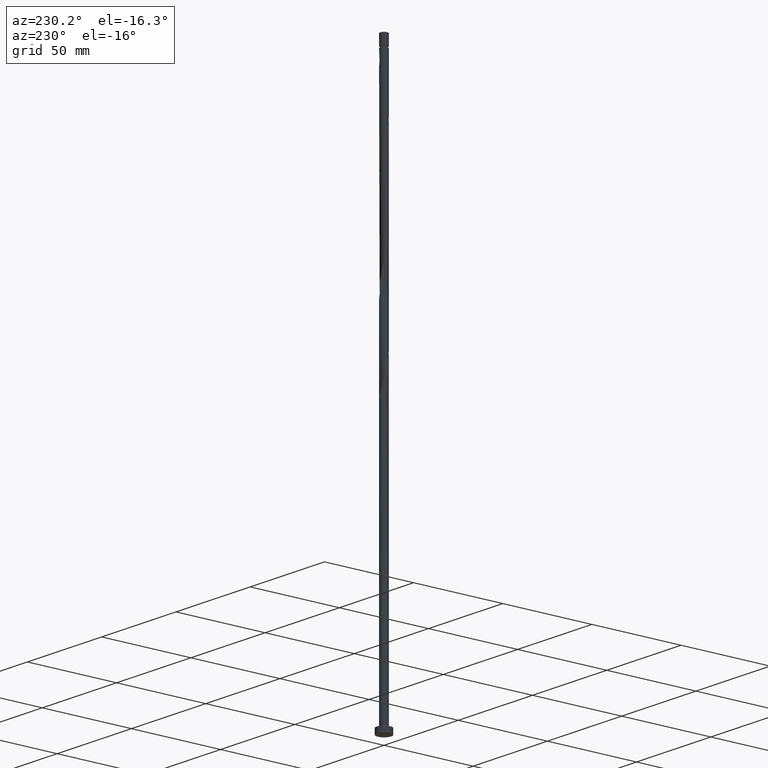
[diagram: clean part render]
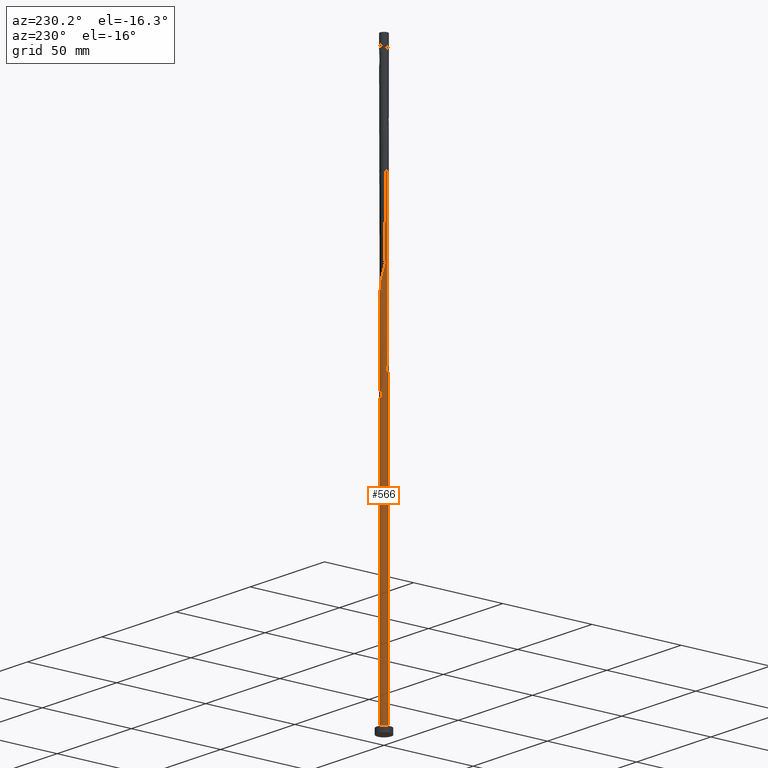
[diagram: same view with one face highlighted and labeled with its STEP entity id]
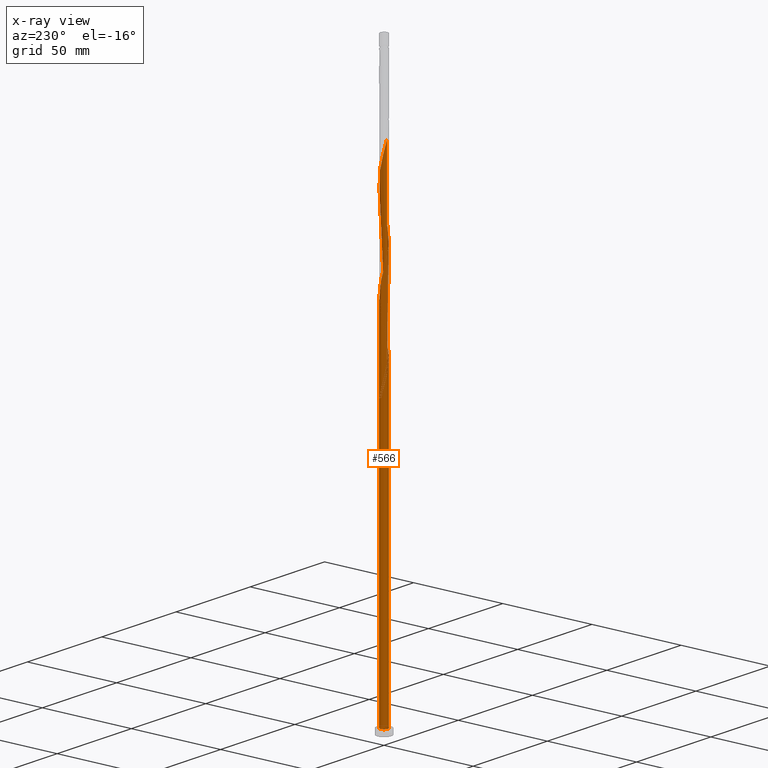
[diagram: x-ray of the same camera — body ghosted, the highlighted face saturated]
A machine part, auxiliary view. The second image highlights one B-rep face of the part: STEP entity #566.
The next image is the same camera in x-ray: the body ghosted, the highlighted face saturated — about 0% of this face is hidden behind the body in this view.
In plain terms, the highlighted cylindrical surface (bore or boss wall) has radius 2.1 mm, axis along (-0, -0, -1).
Its self-contained STEP definition (entity closure, byte-faithful):
#12 = CARTESIAN_POINT ( 'NONE',  ( -1.977324802898940526, 0.7457696815047984984, 211.7246174760195174 ) ) ;
#22 = CARTESIAN_POINT ( 'NONE',  ( 1.529844344593006999, 1.457930751211418796, 194.8496174760195174 ) ) ;
#33 = CARTESIAN_POINT ( 'NONE',  ( 1.609865263481134123, -1.348456092513521831, 235.1621174760196027 ) ) ;
#34 = CARTESIAN_POINT ( 'NONE',  ( -2.010914572924958676, 0.6497756338992118907, 162.9746174760196027 ) ) ;
#42 = CARTESIAN_POINT ( 'NONE',  ( 0.5164225990933596355, 2.035511655369645734, 199.5371174760196311 ) ) ;
#43 = CARTESIAN_POINT ( 'NONE',  ( -2.100000000000000533, 2.772462431623409920E-15, 165.5866345539256770 ) ) ;
#50 = CARTESIAN_POINT ( 'NONE',  ( 0.7457696815047989425, 1.977324802898940526, 198.5996174760195743 ) ) ;
#60 = CARTESIAN_POINT ( 'NONE',  ( 1.815908065240426694, 1.080954991017605060, 245.4746174760195458 ) ) ;
#124 = CARTESIAN_POINT ( 'NONE',  ( -1.977324802898940526, 0.7457696815047984984, 159.2246174760195458 ) ) ;
#127 = AXIS2_PLACEMENT_3D ( 'NONE', #1487, #674, #1628 ) ;
#146 = CARTESIAN_POINT ( 'NONE',  ( -1.913411319082694462, -0.8653653124584091971, 165.7871174760196027 ) ) ;
#153 = CARTESIAN_POINT ( 'NONE',  ( -0.8653653124584091971, 1.913411319082694462, 152.6621174760196311 ) ) ;
#165 = CARTESIAN_POINT ( 'NONE',  ( -1.167067840434034220, -1.761799775750848784, 170.4746174760195174 ) ) ;
#166 = CARTESIAN_POINT ( 'NONE',  ( -2.057999999999999829, 0.4178947235847834119, 163.9121174760195743 ) ) ;
#176 = CARTESIAN_POINT ( 'NONE',  ( -0.9564187609694169145, -1.869562289324894433, 223.9121174760196311 ) ) ;
#184 = CARTESIAN_POINT ( 'NONE',  ( 0.9564187609694170256, 1.869562289324894433, 197.6621174760195458 ) ) ;
#185 = DIRECTION ( 'NONE',  ( 1.000000000000000000, 0.000000000000000000, 0.000000000000000000 ) ) ;
#192 = CARTESIAN_POINT ( 'NONE',  ( -0.8653653124584091971, 1.913411319082694462, 257.6621174760196595 ) ) ;
#195 = CARTESIAN_POINT ( 'NONE',  ( -1.672876204916717180, -1.269442871114512927, 220.1621174760196027 ) ) ;
#202 = CARTESIAN_POINT ( 'NONE',  ( -1.815908065240426694, -1.080954991017605282, 219.2246174760195458 ) ) ;
#203 = CARTESIAN_POINT ( 'NONE',  ( -1.815908065240424252, 1.080954991017604616, 161.0996174760196027 ) ) ;
#211 = CARTESIAN_POINT ( 'NONE',  ( 2.035511655369645734, -0.5164225990933594135, 186.4121174760196027 ) ) ;
#219 = CARTESIAN_POINT ( 'NONE',  ( 0.7457696815047989425, 1.977324802898940526, 251.0996174760194890 ) ) ;
#245 = CARTESIAN_POINT ( 'NONE',  ( 0.000000000000000000, 0.000000000000000000, 3.000000000000000000 ) ) ;
#249 = EDGE_CURVE ( 'NONE', #824, #1126, #1617, .T. ) ;
#253 = FACE_OUTER_BOUND ( 'NONE', #285, .T. ) ;
#261 = CYLINDRICAL_SURFACE ( 'NONE', #1806, 2.100000000000000089 ) ;
#264 = CARTESIAN_POINT ( 'NONE',  ( 0.1860138132703544611, -2.105085427075044535, 176.0996174760195743 ) ) ;
#268 = VERTEX_POINT ( 'NONE', #1403 ) ;
#272 = CARTESIAN_POINT ( 'NONE',  ( -2.100000000000004086, 0.02526908404941905634, 162.1372377098884385 ) ) ;
#285 = EDGE_LOOP ( 'NONE', ( #405, #1778, #555, #1409, #1258, #781, #1386, #692, #959 ) ) ;
#295 = CARTESIAN_POINT ( 'NONE',  ( -1.529844344593006999, -1.457930751211419462, 168.5996174760195458 ) ) ;
#296 = CARTESIAN_POINT ( 'NONE',  ( 0.000000000000000000, 0.000000000000000000, 3.000000000000000000 ) ) ;
#304 = VERTEX_POINT ( 'NONE', #1428 ) ;
#306 = CARTESIAN_POINT ( 'NONE',  ( -1.167067840434034220, -1.761799775750848784, 222.9746174760195174 ) ) ;
#315 = CARTESIAN_POINT ( 'NONE',  ( 1.977324802898940526, -0.7457696815047987204, 185.4746174760195458 ) ) ;
#324 = CARTESIAN_POINT ( 'NONE',  ( -2.099391967457698627, 0.05053085170578241331, 214.5371174760196027 ) ) ;
#330 = CARTESIAN_POINT ( 'NONE',  ( -1.977324802898940526, 0.7457696815047984984, 264.2246174760194890 ) ) ;
#332 = CARTESIAN_POINT ( 'NONE',  ( 1.457930751211419462, -1.529844344593006999, 234.2246174760195458 ) ) ;
#339 = CARTESIAN_POINT ( 'NONE',  ( -1.913411319082694462, -0.8653653124584091971, 218.2871174760195743 ) ) ;
#349 = DIRECTION ( 'NONE',  ( -0.000000000000000000, -0.000000000000000000, -1.000000000000000000 ) ) ;
#356 = CARTESIAN_POINT ( 'NONE',  ( 0.4178947235847838004, 2.057999999999999829, 150.7871174760195458 ) ) ;
#362 = VERTEX_POINT ( 'NONE', #43 ) ;
#370 = EDGE_CURVE ( 'NONE', #362, #1663, #1673, .T. ) ;
#389 = CARTESIAN_POINT ( 'NONE',  ( -1.869562289324894655, 0.9564187609694169145, 158.2871174760196595 ) ) ;
#401 = CARTESIAN_POINT ( 'NONE',  ( 1.609865263481134123, -1.348456092513521831, 182.6621174760196027 ) ) ;
#405 = ORIENTED_EDGE ( 'NONE', *, *, #534, .F. ) ;
#421 = CARTESIAN_POINT ( 'NONE',  ( -1.609865263481134567, 1.348456092513521165, 156.4121174760195743 ) ) ;
#443 = CARTESIAN_POINT ( 'NONE',  ( 1.869562289324894433, -0.9564187609694170256, 184.5371174760196027 ) ) ;
#444 = CARTESIAN_POINT ( 'NONE',  ( -0.2870755166819187187, 2.093698507840348277, 153.5996174760196311 ) ) ;
#453 = CARTESIAN_POINT ( 'NONE',  ( -0.5164225990933594135, -2.035511655369645734, 225.7871174760196311 ) ) ;
#462 = CARTESIAN_POINT ( 'NONE',  ( -0.6497756338992122238, 2.010914572924960453, 204.2246174760194890 ) ) ;
#463 = CARTESIAN_POINT ( 'NONE',  ( -0.5164225990933579702, 2.035511655369643069, 154.5371174760195174 ) ) ;
#468 = CARTESIAN_POINT ( 'NONE',  ( -0.1860138132703542668, 2.105085427075044535, 254.8496174760195174 ) ) ;
#470 = CARTESIAN_POINT ( 'NONE',  ( 0.1860138132703544611, -2.105085427075044535, 228.5996174760194890 ) ) ;
#475 = CARTESIAN_POINT ( 'NONE',  ( -2.100000000000004530, 0.02526908404940607020, 267.1372377098884385 ) ) ;
#476 = CARTESIAN_POINT ( 'NONE',  ( 2.035511655369645734, -0.5164225990933594135, 238.9121174760196311 ) ) ;
#523 = DIRECTION ( 'NONE',  ( 1.000000000000000000, 0.000000000000000000, 0.000000000000000000 ) ) ;
#534 = EDGE_CURVE ( 'NONE', #268, #362, #1356, .T. ) ;
#541 = CARTESIAN_POINT ( 'NONE',  ( 1.080954991017605282, -1.815908065240426694, 179.8496174760195174 ) ) ;
#550 = CARTESIAN_POINT ( 'NONE',  ( -0.9564187609694169145, -1.869562289324894433, 171.4121174760196027 ) ) ;
#555 = ORIENTED_EDGE ( 'NONE', *, *, #1601, .T. ) ;
#560 = CARTESIAN_POINT ( 'NONE',  ( -2.035511655369646178, 0.5164225990933591914, 160.1621174760195458 ) ) ;
#563 = CIRCLE ( 'NONE', #1287, 2.100000000000000089 ) ;
#566 = ADVANCED_FACE ( 'NONE', ( #253 ), #261, .T. ) ;
#570 = CARTESIAN_POINT ( 'NONE',  ( -2.100000000000004086, -2.238866028228848664E-15, 162.2376003981135568 ) ) ;
#571 = CARTESIAN_POINT ( 'NONE',  ( -1.167067840434033110, 1.761799775750846786, 157.3496174760195174 ) ) ;
#579 = CARTESIAN_POINT ( 'NONE',  ( 2.058000000000003382, 0.4178947235847832453, 242.6621174760196311 ) ) ;
#587 = CARTESIAN_POINT ( 'NONE',  ( -0.1860138132703542668, 2.105085427075044535, 202.3496174760195743 ) ) ;
#588 = CARTESIAN_POINT ( 'NONE',  ( -2.100000000000001865, 0.2110579412044317205, 164.7483634749620478 ) ) ;
#597 = CARTESIAN_POINT ( 'NONE',  ( 0.05053085170578282964, 2.099391967457698627, 253.9121174760196595 ) ) ;
#599 = CARTESIAN_POINT ( 'NONE',  ( -1.529844344593006999, -1.457930751211419462, 221.0996174760194890 ) ) ;
#608 = CARTESIAN_POINT ( 'NONE',  ( 1.815908065240426694, 1.080954991017605060, 192.9746174760195174 ) ) ;
#616 = CARTESIAN_POINT ( 'NONE',  ( 0.6497756338992120018, -2.010914572924960453, 230.4746174760195458 ) ) ;
#625 = EDGE_CURVE ( 'NONE', #870, #1663, #1429, .T. ) ;
#626 = CARTESIAN_POINT ( 'NONE',  ( 1.348456092513521831, 1.609865263481134123, 248.2871174760195743 ) ) ;
#633 = CARTESIAN_POINT ( 'NONE',  ( -1.080954991017605504, 1.815908065240426694, 258.5996174760194890 ) ) ;
#665 = DIRECTION ( 'NONE',  ( -0.000000000000000000, -0.000000000000000000, -1.000000000000000000 ) ) ;
#674 = DIRECTION ( 'NONE',  ( 0.000000000000000000, -0.000000000000000000, -1.000000000000000000 ) ) ;
#687 = CARTESIAN_POINT ( 'NONE',  ( -1.348456092513521831, -1.609865263481134789, 169.5371174760196027 ) ) ;
#692 = ORIENTED_EDGE ( 'NONE', *, *, #625, .T. ) ;
#693 =( BOUNDED_CURVE ( )  B_SPLINE_CURVE ( 2, ( #1111, #831, #153, #1801, #702, #1375, #421, #1237, #389, #124, #560, #1526, #1792, #272, #570 ),
 .UNSPECIFIED., .F., .T. ) 
 B_SPLINE_CURVE_WITH_KNOTS ( ( 3, 2, 2, 2, 2, 2, 2, 3 ),
 ( 0.000000000000000000, 0.008928571428571396851, 0.01785714285714290472, 0.02678571428571430157, 0.03571428571428569843, 0.04464285714285709528, 0.05357142857142860315, 0.05453034012992203500 ),
 .UNSPECIFIED. ) 
 CURVE ( )  GEOMETRIC_REPRESENTATION_ITEM ( )  RATIONAL_B_SPLINE_CURVE ( ( 0.9090909090909637946, 0.9033747362666387781, 0.9090909090909637946, 0.9033747362666387781, 0.9090909090909637946, 0.9033747362666387781, 0.9090909090909637946, 0.9033747362666387781, 0.9090909090909637946, 0.9033747362666387781, 0.9090909090909637946, 0.9033747362666387781, 0.9090909090909637946, 0.9084770030215055803, 0.9079949616362339437 ) ) 
 REPRESENTATION_ITEM ( '' )  );
#702 = CARTESIAN_POINT ( 'NONE',  ( -1.269442871114512927, 1.672876204916717180, 154.5371174760195743 ) ) ;
#712 = CARTESIAN_POINT ( 'NONE',  ( -0.5164225990933594135, -2.035511655369645734, 173.2871174760195458 ) ) ;
#722 = CARTESIAN_POINT ( 'NONE',  ( -0.7457696815047987204, -1.977324802898940526, 224.8496174760194890 ) ) ;
#730 = CARTESIAN_POINT ( 'NONE',  ( -2.093698507840349610, 0.2870755166819193294, 213.5996174760195458 ) ) ;
#738 = CARTESIAN_POINT ( 'NONE',  ( -1.269442871114512927, 1.672876204916717180, 259.5371174760196027 ) ) ;
#741 = CARTESIAN_POINT ( 'NONE',  ( 1.761799775750848784, -1.167067840434034220, 236.0996174760194890 ) ) ;
#748 = CARTESIAN_POINT ( 'NONE',  ( 2.093698507840349166, -0.2870755166819197179, 187.3496174760195743 ) ) ;
#749 = DIRECTION ( 'NONE',  ( 0.000000000000000000, 0.000000000000000000, 1.000000000000000000 ) ) ;
#757 = CARTESIAN_POINT ( 'NONE',  ( 1.672876204916717402, 1.269442871114512483, 246.4121174760195743 ) ) ;
#763 = CARTESIAN_POINT ( 'NONE',  ( 0.5164225990933596355, 2.035511655369645734, 252.0371174760196027 ) ) ;
#781 = ORIENTED_EDGE ( 'NONE', *, *, #1601, .F. ) ;
#811 = CARTESIAN_POINT ( 'NONE',  ( 0.4178947235847834674, -2.058000000000003382, 177.0371174760195743 ) ) ;
#818 = VECTOR ( 'NONE', #928, 1000.000000000000000 ) ;
#824 = VERTEX_POINT ( 'NONE', #1491 ) ;
#831 = CARTESIAN_POINT ( 'NONE',  ( -0.6497756338992122238, 2.010914572924960453, 151.7246174760195743 ) ) ;
#832 = EDGE_CURVE ( 'NONE', #1126, #824, #563, .T. ) ;
#845 = AXIS2_PLACEMENT_3D ( 'NONE', #296, #749, #185 ) ;
#865 = CARTESIAN_POINT ( 'NONE',  ( -2.105085427075044535, -0.1860138132703545999, 215.4746174760194890 ) ) ;
#870 = VERTEX_POINT ( 'NONE', #1077 ) ;
#872 = CARTESIAN_POINT ( 'NONE',  ( 0.2870755166819198290, 2.093698507840349166, 200.4746174760195458 ) ) ;
#882 = CARTESIAN_POINT ( 'NONE',  ( 0.4178947235847834674, -2.058000000000003382, 229.5371174760196027 ) ) ;
#888 = CARTESIAN_POINT ( 'NONE',  ( -2.035511655369646178, 0.5164225990933591914, 265.1621174760196595 ) ) ;
#889 = CARTESIAN_POINT ( 'NONE',  ( 1.869562289324894433, -0.9564187609694170256, 237.0371174760196311 ) ) ;
#890 = CARTESIAN_POINT ( 'NONE',  ( -2.100000000000000533, 2.772462431623409920E-15, 165.5866345539256770 ) ) ;
#891 = CARTESIAN_POINT ( 'NONE',  ( -2.100000000000000089, 0.000000000000000000, 315.0000000000000000 ) ) ;
#896 = CARTESIAN_POINT ( 'NONE',  ( -2.100000000000003642, 1.007489712702981978E-15, 267.2376003981134431 ) ) ;
#897 = CARTESIAN_POINT ( 'NONE',  ( 2.099391967457698627, -0.05053085170578267699, 240.7871174760195743 ) ) ;
#899 = CARTESIAN_POINT ( 'NONE',  ( -2.100000000000000089, 0.000000000000000000, 315.0000000000000000 ) ) ;
#909 = CARTESIAN_POINT ( 'NONE',  ( -1.609865263481134567, 1.348456092513521165, 261.4121174760196027 ) ) ;
#916 = DIRECTION ( 'NONE',  ( 0.000000000000000000, 0.000000000000000000, 1.000000000000000000 ) ) ;
#928 = DIRECTION ( 'NONE',  ( -0.000000000000000000, -0.000000000000000000, -1.000000000000000000 ) ) ;
#955 = CARTESIAN_POINT ( 'NONE',  ( -2.058000000000003382, -0.4178947235847835784, 163.9121174760196027 ) ) ;
#959 = ORIENTED_EDGE ( 'NONE', *, *, #370, .F. ) ;
#965 = CARTESIAN_POINT ( 'NONE',  ( 1.269442871114512927, -1.672876204916717180, 180.7871174760196027 ) ) ;
#989 = CARTESIAN_POINT ( 'NONE',  ( -1.815908065240426694, -1.080954991017605282, 166.7246174760194890 ) ) ;
#997 =( BOUNDED_CURVE ( )  B_SPLINE_CURVE ( 2, ( #1501, #1651, #955, #1253, #146, #989, #1536, #295, #687, #165, #550, #1226, #712, #1772, #1632, #264, #811, #1368, #1783, #541, #965, #1642, #401, #1294, #443, #315, #211, #748, #1303, #1546, #1129, #1009, #1699, #608, #1412, #22, #1276, #1265, #184, #50, #42, #872, #1420, #587, #1574, #462, #1427, #1555, #1018, #1563, #1141, #1161, #1580, #12, #1706, #730, #324, #865, #999, #1437, #339, #202, #195, #599, #1690, #306, #176, #722, #453, #1150, #1679, #470, #882, #616, #1027, #1167, #1285, #332, #33, #741, #889, #1714, #476, #1036, #897, #1445, #579, #1176, #1722, #60, #757, #1312, #626, #1572, #1459, #219, #763, #1015, #597, #468, #1166, #1587, #192, #633, #738, #1148, #909, #1712, #1721, #330, #888, #1293, #1043, #475, #896 ),
 .UNSPECIFIED., .F., .T. ) 
 B_SPLINE_CURVE_WITH_KNOTS ( ( 3, 2, 2, 2, 2, 2, 2, 2, 2, 2, 2, 2, 2, 2, 2, 2, 2, 2, 2, 2, 2, 2, 2, 2, 2, 2, 2, 2, 2, 2, 2, 2, 2, 2, 2, 2, 2, 2, 2, 2, 2, 2, 2, 2, 2, 2, 2, 2, 2, 2, 2, 2, 2, 2, 2, 2, 2, 3 ),
 ( 0.05453034012992203500, 0.06250000000000000000, 0.07142857142857139685, 0.08035714285714290472, 0.08928571428571430157, 0.09821428571428569843, 0.1071428571428570953, 0.1160714285714286031, 0.1250000000000000000, 0.1339285714285713969, 0.1428571428571429047, 0.1517857142857143016, 0.1607142857142856984, 0.1696428571428570953, 0.1785714285714286031, 0.1875000000000000000, 0.1964285714285713969, 0.2053571428571429047, 0.2142857142857143016, 0.2232142857142856984, 0.2321428571428570953, 0.2410714285714286031, 0.2500000000000000000, 0.2589285714285713969, 0.2678571428571429047, 0.2767857142857143016, 0.2857142857142856984, 0.2946428571428570953, 0.3035714285714286031, 0.3125000000000000000, 0.3214285714285713969, 0.3303571428571429047, 0.3392857142857143016, 0.3482142857142856984, 0.3571428571428570953, 0.3660714285714286031, 0.3750000000000000000, 0.3839285714285713969, 0.3928571428571429047, 0.4017857142857143016, 0.4107142857142856984, 0.4196428571428570953, 0.4285714285714286031, 0.4375000000000000000, 0.4464285714285713969, 0.4553571428571429047, 0.4642857142857143016, 0.4732142857142856984, 0.4821428571428570953, 0.4910714285714286031, 0.5000000000000000000, 0.5089285714285713969, 0.5178571428571427937, 0.5267857142857143016, 0.5357142857142856984, 0.5446428571428572063, 0.5535714285714286031, 0.5545303401299225277 ),
 .UNSPECIFIED. ) 
 CURVE ( )  GEOMETRIC_REPRESENTATION_ITEM ( )  RATIONAL_B_SPLINE_CURVE ( ( 0.9079949616362339437, 0.9039886423360969925, 0.9090909090909637946, 0.9033747362666387781, 0.9090909090909637946, 0.9033747362666387781, 0.9090909090909637946, 0.9033747362666387781, 0.9090909090909637946, 0.9033747362666387781, 0.9090909090909637946, 0.9033747362666387781, 0.9090909090909637946, 0.9033747362666387781, 0.9090909090909637946, 0.9033747362666387781, 0.9090909090909637946, 0.9033747362666387781, 0.9090909090909637946, 0.9033747362666387781, 0.9090909090909637946, 0.9033747362666387781, 0.9090909090909637946, 0.9033747362666387781, 0.9090909090909637946, 0.9033747362666387781, 0.9090909090909637946, 0.9033747362666387781, 0.9090909090909637946, 0.9033747362666387781, 0.9090909090909637946, 0.9033747362666387781, 0.9090909090909637946, 0.9033747362666387781, 0.9090909090909637946, 0.9033747362666387781, 0.9090909090909637946, 0.9033747362666387781, 0.9090909090909637946, 0.9033747362666387781, 0.9090909090909637946, 0.9033747362666387781, 0.9090909090909637946, 0.9033747362666387781, 0.9090909090909637946, 0.9033747362666387781, 0.9090909090909637946, 0.9033747362666387781, 0.9090909090909637946, 0.9033747362666387781, 0.9090909090909637946, 0.9033747362666387781, 0.9090909090909637946, 0.9033747362666387781, 0.9090909090909637946, 0.9033747362666387781, 0.9090909090909637946, 0.9033747362666387781, 0.9090909090909637946, 0.9033747362666387781, 0.9090909090909637946, 0.9033747362666387781, 0.9090909090909637946, 0.9033747362666387781, 0.9090909090909637946, 0.9033747362666387781, 0.9090909090909637946, 0.9033747362666387781, 0.9090909090909637946, 0.9033747362666387781, 0.9090909090909637946, 0.9033747362666387781, 0.9090909090909637946, 0.9033747362666387781, 0.9090909090909637946, 0.9033747362666387781, 0.9090909090909637946, 0.9033747362666387781, 0.9090909090909637946, 0.9033747362666387781, 0.9090909090909637946, 0.9033747362666387781, 0.9090909090909637946, 0.9033747362666387781, 0.9090909090909637946, 0.9033747362666387781, 0.9090909090909637946, 0.9033747362666387781, 0.9090909090909637946, 0.9033747362666387781, 0.9090909090909637946, 0.9033747362666387781, 0.9090909090909637946, 0.9033747362666387781, 0.9090909090909637946, 0.9033747362666387781, 0.9090909090909637946, 0.9033747362666387781, 0.9090909090909637946, 0.9033747362666387781, 0.9090909090909637946, 0.9033747362666387781, 0.9090909090909637946, 0.9033747362666387781, 0.9090909090909637946, 0.9033747362666387781, 0.9090909090909637946, 0.9033747362666387781, 0.9090909090909637946, 0.9033747362666387781, 0.9090909090909637946, 0.9033747362666387781, 0.9090909090909637946, 0.9084770030215052472, 0.9079949616362334996 ) ) 
 REPRESENTATION_ITEM ( '' )  );
#999 = CARTESIAN_POINT ( 'NONE',  ( -2.058000000000003382, -0.4178947235847835784, 216.4121174760196311 ) ) ;
#1000 = CARTESIAN_POINT ( 'NONE',  ( -0.05053085170578192065, 2.099391967457694630, 152.6621174760196027 ) ) ;
#1009 = CARTESIAN_POINT ( 'NONE',  ( 2.010914572924960453, 0.6497756338992118907, 191.0996174760195174 ) ) ;
#1015 = CARTESIAN_POINT ( 'NONE',  ( 0.2870755166819198290, 2.093698507840349166, 252.9746174760195743 ) ) ;
#1018 = CARTESIAN_POINT ( 'NONE',  ( -1.269442871114512927, 1.672876204916717180, 207.0371174760195743 ) ) ;
#1019 = CARTESIAN_POINT ( 'NONE',  ( 0.1860138132703548219, 2.105085427075041871, 151.7246174760196595 ) ) ;
#1027 = CARTESIAN_POINT ( 'NONE',  ( 0.8653653124584090861, -1.913411319082694462, 231.4121174760195174 ) ) ;
#1036 = CARTESIAN_POINT ( 'NONE',  ( 2.093698507840349166, -0.2870755166819197179, 239.8496174760194890 ) ) ;
#1043 = CARTESIAN_POINT ( 'NONE',  ( -2.099391967457698627, 0.05053085170578241331, 267.0371174760196027 ) ) ;
#1077 = CARTESIAN_POINT ( 'NONE',  ( -0.4178947235847831898, 2.058000000000003382, 150.7871174760195458 ) ) ;
#1082 = DIRECTION ( 'NONE',  ( -1.000000000000000000, 0.000000000000000000, 0.000000000000000000 ) ) ;
#1091 = CARTESIAN_POINT ( 'NONE',  ( 0.4178947235847838004, 2.057999999999999829, 150.7871174760195458 ) ) ;
#1111 = CARTESIAN_POINT ( 'NONE',  ( -0.4178947235847831898, 2.058000000000003382, 150.7871174760195458 ) ) ;
#1120 = CARTESIAN_POINT ( 'NONE',  ( -0.7457696815047973882, 1.977324802898937861, 155.4746174760195743 ) ) ;
#1126 = VERTEX_POINT ( 'NONE', #1516 ) ;
#1129 = CARTESIAN_POINT ( 'NONE',  ( 2.058000000000003382, 0.4178947235847832453, 190.1621174760196595 ) ) ;
#1130 = CARTESIAN_POINT ( 'NONE',  ( -1.913411319082690909, 0.8653653124584081979, 162.0371174760196027 ) ) ;
#1131 = EDGE_CURVE ( 'NONE', #870, #304, #693, .T. ) ;
#1141 = CARTESIAN_POINT ( 'NONE',  ( -1.609865263481134567, 1.348456092513521165, 208.9121174760195743 ) ) ;
#1148 = CARTESIAN_POINT ( 'NONE',  ( -1.457930751211419462, 1.529844344593006777, 260.4746174760195458 ) ) ;
#1150 = CARTESIAN_POINT ( 'NONE',  ( -0.2870755166819194959, -2.093698507840349610, 226.7246174760195458 ) ) ;
#1151 = CARTESIAN_POINT ( 'NONE',  ( -1.672876204916714515, 1.269442871114510929, 160.1621174760195743 ) ) ;
#1161 = CARTESIAN_POINT ( 'NONE',  ( -1.761799775750848784, 1.167067840434034220, 209.8496174760195174 ) ) ;
#1166 = CARTESIAN_POINT ( 'NONE',  ( -0.4178947235847831898, 2.058000000000003382, 255.7871174760195743 ) ) ;
#1167 = CARTESIAN_POINT ( 'NONE',  ( 1.080954991017605282, -1.815908065240426694, 232.3496174760195458 ) ) ;
#1176 = CARTESIAN_POINT ( 'NONE',  ( 2.010914572924960453, 0.6497756338992118907, 243.5996174760195458 ) ) ;
#1226 = CARTESIAN_POINT ( 'NONE',  ( -0.7457696815047987204, -1.977324802898940526, 172.3496174760195458 ) ) ;
#1237 = CARTESIAN_POINT ( 'NONE',  ( -1.761799775750848784, 1.167067840434034220, 157.3496174760195174 ) ) ;
#1253 = CARTESIAN_POINT ( 'NONE',  ( -2.010914572924960453, -0.6497756338992121128, 164.8496174760196311 ) ) ;
#1258 = ORIENTED_EDGE ( 'NONE', *, *, #249, .T. ) ;
#1265 = CARTESIAN_POINT ( 'NONE',  ( 1.167067840434034220, 1.761799775750848562, 196.7246174760195458 ) ) ;
#1276 = CARTESIAN_POINT ( 'NONE',  ( 1.348456092513521831, 1.609865263481134123, 195.7871174760196027 ) ) ;
#1277 = LINE ( 'NONE', #891, #1399 ) ;
#1285 = CARTESIAN_POINT ( 'NONE',  ( 1.269442871114512927, -1.672876204916717180, 233.2871174760196311 ) ) ;
#1286 = CARTESIAN_POINT ( 'NONE',  ( -1.529844344593004335, 1.457930751211418352, 159.2246174760196311 ) ) ;
#1287 = AXIS2_PLACEMENT_3D ( 'NONE', #245, #916, #523 ) ;
#1291 = EDGE_CURVE ( 'NONE', #304, #268, #997, .T. ) ;
#1293 = CARTESIAN_POINT ( 'NONE',  ( -2.093698507840349610, 0.2870755166819193294, 266.0996174760195458 ) ) ;
#1294 = CARTESIAN_POINT ( 'NONE',  ( 1.761799775750848784, -1.167067840434034220, 183.5996174760195174 ) ) ;
#1303 = CARTESIAN_POINT ( 'NONE',  ( 2.099391967457698627, -0.05053085170578267699, 188.2871174760196027 ) ) ;
#1312 = CARTESIAN_POINT ( 'NONE',  ( 1.529844344593006999, 1.457930751211418796, 247.3496174760194890 ) ) ;
#1356 = LINE ( 'NONE', #899, #818 ) ;
#1363 = CARTESIAN_POINT ( 'NONE',  ( 0.000000000000000000, 0.000000000000000000, 315.0000000000000000 ) ) ;
#1368 = CARTESIAN_POINT ( 'NONE',  ( 0.6497756338992120018, -2.010914572924960453, 177.9746174760195174 ) ) ;
#1375 = CARTESIAN_POINT ( 'NONE',  ( -1.457930751211419462, 1.529844344593006777, 155.4746174760195458 ) ) ;
#1386 = ORIENTED_EDGE ( 'NONE', *, *, #1131, .F. ) ;
#1399 = VECTOR ( 'NONE', #349, 1000.000000000000000 ) ;
#1403 = CARTESIAN_POINT ( 'NONE',  ( -2.100000000000003642, 1.007489712702981978E-15, 267.2376003981134431 ) ) ;
#1409 = ORIENTED_EDGE ( 'NONE', *, *, #832, .T. ) ;
#1412 = CARTESIAN_POINT ( 'NONE',  ( 1.672876204916717402, 1.269442871114512483, 193.9121174760195458 ) ) ;
#1420 = CARTESIAN_POINT ( 'NONE',  ( 0.05053085170578282964, 2.099391967457698627, 201.4121174760196595 ) ) ;
#1427 = CARTESIAN_POINT ( 'NONE',  ( -0.8653653124584091971, 1.913411319082694462, 205.1621174760196311 ) ) ;
#1428 = CARTESIAN_POINT ( 'NONE',  ( -2.100000000000004086, -2.238866028228848664E-15, 162.2376003981135568 ) ) ;
#1429 = CIRCLE ( 'NONE', #127, 2.100000000000000089 ) ;
#1437 = CARTESIAN_POINT ( 'NONE',  ( -2.010914572924960453, -0.6497756338992121128, 217.3496174760194322 ) ) ;
#1445 = CARTESIAN_POINT ( 'NONE',  ( 2.105085427075044535, 0.1860138132703543501, 241.7246174760195458 ) ) ;
#1459 = CARTESIAN_POINT ( 'NONE',  ( 0.9564187609694170256, 1.869562289324894433, 250.1621174760196311 ) ) ;
#1487 = CARTESIAN_POINT ( 'NONE',  ( 0.000000000000000000, 0.000000000000000000, 150.7871174760195458 ) ) ;
#1491 = CARTESIAN_POINT ( 'NONE',  ( 2.100000000000000089, 0.000000000000000000, 3.000000000000000000 ) ) ;
#1501 = CARTESIAN_POINT ( 'NONE',  ( -2.100000000000004086, -2.238866028228848664E-15, 162.2376003981135568 ) ) ;
#1516 = CARTESIAN_POINT ( 'NONE',  ( -2.100000000000000089, 0.000000000000000000, 3.000000000000000000 ) ) ;
#1526 = CARTESIAN_POINT ( 'NONE',  ( -2.093698507840349610, 0.2870755166819193294, 161.0996174760194890 ) ) ;
#1536 = CARTESIAN_POINT ( 'NONE',  ( -1.672876204916717180, -1.269442871114512927, 167.6621174760196027 ) ) ;
#1546 = CARTESIAN_POINT ( 'NONE',  ( 2.105085427075044535, 0.1860138132703543501, 189.2246174760195174 ) ) ;
#1555 = CARTESIAN_POINT ( 'NONE',  ( -1.080954991017605504, 1.815908065240426694, 206.0996174760194890 ) ) ;
#1563 = CARTESIAN_POINT ( 'NONE',  ( -1.457930751211419462, 1.529844344593006777, 207.9746174760195174 ) ) ;
#1572 = CARTESIAN_POINT ( 'NONE',  ( 1.167067840434034220, 1.761799775750848562, 249.2246174760195174 ) ) ;
#1574 = CARTESIAN_POINT ( 'NONE',  ( -0.4178947235847831898, 2.058000000000003382, 203.2871174760196311 ) ) ;
#1580 = CARTESIAN_POINT ( 'NONE',  ( -1.869562289324894655, 0.9564187609694169145, 210.7871174760196595 ) ) ;
#1587 = CARTESIAN_POINT ( 'NONE',  ( -0.6497756338992122238, 2.010914572924960453, 256.7246174760194890 ) ) ;
#1601 = EDGE_CURVE ( 'NONE', #304, #1126, #1277, .T. ) ;
#1617 = CIRCLE ( 'NONE', #845, 2.100000000000000089 ) ;
#1628 = DIRECTION ( 'NONE',  ( -1.000000000000000000, 0.000000000000000000, 0.000000000000000000 ) ) ;
#1632 = CARTESIAN_POINT ( 'NONE',  ( -0.05053085170578251739, -2.099391967457698627, 175.1621174760196027 ) ) ;
#1642 = CARTESIAN_POINT ( 'NONE',  ( 1.457930751211419462, -1.529844344593006999, 181.7246174760195458 ) ) ;
#1651 = CARTESIAN_POINT ( 'NONE',  ( -2.100000000000003197, -0.2110579412044359671, 163.0758714770771292 ) ) ;
#1663 = VERTEX_POINT ( 'NONE', #356 ) ;
#1673 =( BOUNDED_CURVE ( )  B_SPLINE_CURVE ( 2, ( #890, #588, #166, #34, #1130, #203, #1151, #1286, #1680, #571, #1700, #1120, #463, #444, #1000, #1019, #1091 ),
 .UNSPECIFIED., .F., .T. ) 
 B_SPLINE_CURVE_WITH_KNOTS ( ( 3, 2, 2, 2, 2, 2, 2, 2, 3 ),
 ( 0.9295303401299218615, 0.9375000000000000000, 0.9464285714285713969, 0.9553571428571429047, 0.9642857142857143016, 0.9732142857142856984, 0.9821428571428570953, 0.9910714285714286031, 1.000000000000000000 ),
 .UNSPECIFIED. ) 
 CURVE ( )  GEOMETRIC_REPRESENTATION_ITEM ( )  RATIONAL_B_SPLINE_CURVE ( ( 0.9079949616362281706, 0.9039886423360906642, 0.9090909090909577994, 0.9033747362666324499, 0.9090909090909577994, 0.9033747362666324499, 0.9090909090909577994, 0.9033747362666324499, 0.9090909090909577994, 0.9033747362666324499, 0.9090909090909577994, 0.9033747362666324499, 0.9090909090909577994, 0.9033747362666324499, 0.9090909090909577994, 0.9033747362666324499, 0.9090909090909577994 ) ) 
 REPRESENTATION_ITEM ( '' )  );
#1679 = CARTESIAN_POINT ( 'NONE',  ( -0.05053085170578251739, -2.099391967457698627, 227.6621174760196027 ) ) ;
#1680 = CARTESIAN_POINT ( 'NONE',  ( -1.348456092513518279, 1.609865263481132347, 158.2871174760196027 ) ) ;
#1690 = CARTESIAN_POINT ( 'NONE',  ( -1.348456092513521831, -1.609865263481134789, 222.0371174760196311 ) ) ;
#1699 = CARTESIAN_POINT ( 'NONE',  ( 1.913411319082694462, 0.8653653124584090861, 192.0371174760196311 ) ) ;
#1700 = CARTESIAN_POINT ( 'NONE',  ( -0.9564187609694148051, 1.869562289324891990, 156.4121174760195458 ) ) ;
#1706 = CARTESIAN_POINT ( 'NONE',  ( -2.035511655369646178, 0.5164225990933591914, 212.6621174760195743 ) ) ;
#1712 = CARTESIAN_POINT ( 'NONE',  ( -1.761799775750848784, 1.167067840434034220, 262.3496174760194890 ) ) ;
#1714 = CARTESIAN_POINT ( 'NONE',  ( 1.977324802898940526, -0.7457696815047987204, 237.9746174760194890 ) ) ;
#1721 = CARTESIAN_POINT ( 'NONE',  ( -1.869562289324894655, 0.9564187609694169145, 263.2871174760195458 ) ) ;
#1722 = CARTESIAN_POINT ( 'NONE',  ( 1.913411319082694462, 0.8653653124584090861, 244.5371174760196311 ) ) ;
#1772 = CARTESIAN_POINT ( 'NONE',  ( -0.2870755166819194959, -2.093698507840349610, 174.2246174760195174 ) ) ;
#1778 = ORIENTED_EDGE ( 'NONE', *, *, #1291, .F. ) ;
#1783 = CARTESIAN_POINT ( 'NONE',  ( 0.8653653124584090861, -1.913411319082694462, 178.9121174760195743 ) ) ;
#1792 = CARTESIAN_POINT ( 'NONE',  ( -2.099391967457698627, 0.05053085170578241331, 162.0371174760196027 ) ) ;
#1801 = CARTESIAN_POINT ( 'NONE',  ( -1.080954991017605504, 1.815908065240426694, 153.5996174760195743 ) ) ;
#1806 = AXIS2_PLACEMENT_3D ( 'NONE', #1363, #665, #1082 ) ;